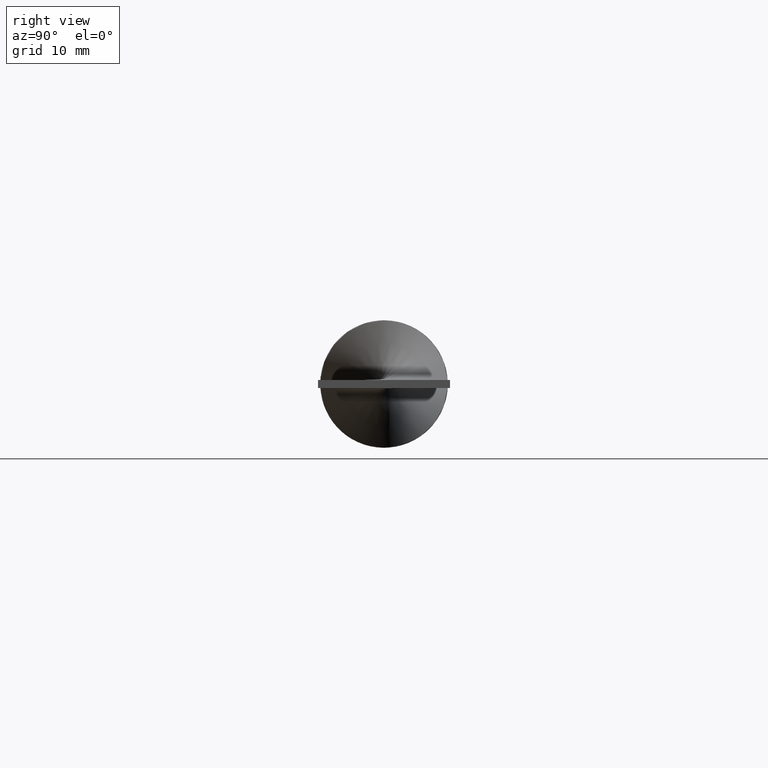
[diagram: clean part render]
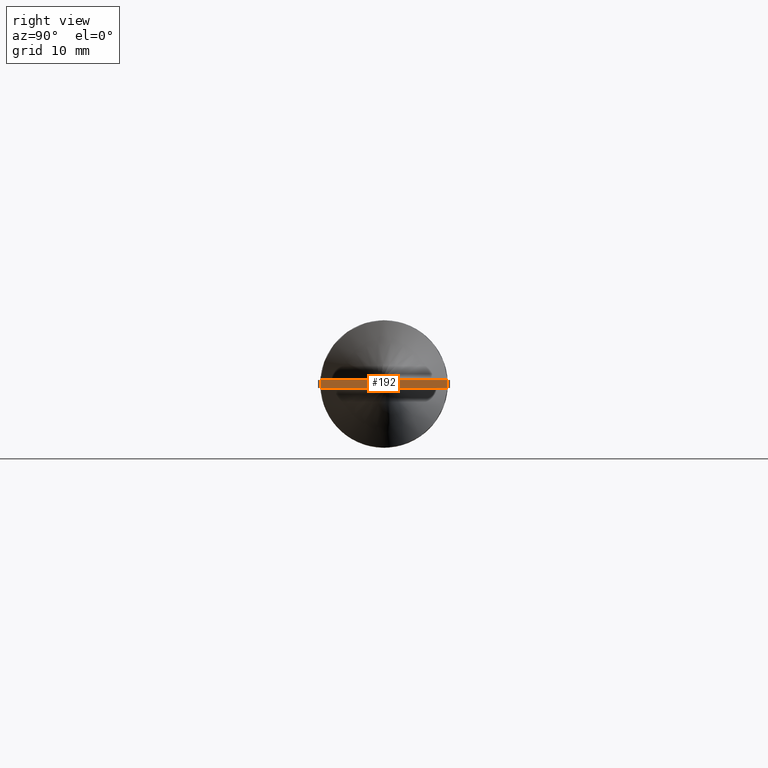
[diagram: same view with one face highlighted and labeled with its STEP entity id]
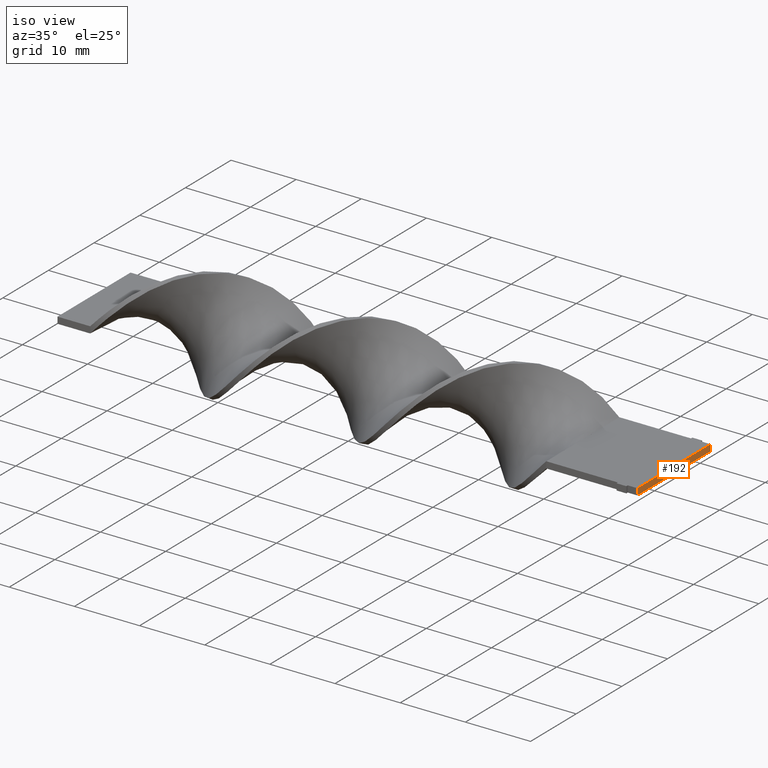
[diagram: same view with one face highlighted and labeled with its STEP entity id]
A machine part, right view. The second image highlights one B-rep face of the part: STEP entity #192.
A second angle (iso view) of the same face is appended — the face is thin or edge-on in the first view.
In plain terms, the highlighted planar face has unit normal (-1, -0, 0).
Its self-contained STEP definition (entity closure, byte-faithful):
#56 = CARTESIAN_POINT ( 'NONE',  ( -3.851859888774471706E-31, -8.000000000000000000, 0.5000000000000000000 ) ) ;
#118 = EDGE_LOOP ( 'NONE', ( #1364, #221, #902, #614 ) ) ;
#192 = ADVANCED_FACE ( 'NONE', ( #1034 ), #1176, .F. ) ;
#221 = ORIENTED_EDGE ( 'NONE', *, *, #1304, .F. ) ;
#253 = VERTEX_POINT ( 'NONE', #613 ) ;
#269 = EDGE_CURVE ( 'NONE', #253, #1388, #856, .T. ) ;
#270 = CARTESIAN_POINT ( 'NONE',  ( -3.851859888774471706E-31, -8.000000000000000000, 0.5000000000000000000 ) ) ;
#271 = AXIS2_PLACEMENT_3D ( 'NONE', #56, #1441, #468 ) ;
#325 = VECTOR ( 'NONE', #605, 1000.000000000000000 ) ;
#378 = CARTESIAN_POINT ( 'NONE',  ( -3.851859888774471706E-31, -8.000000000000000000, 0.5000000000000000000 ) ) ;
#401 = LINE ( 'NONE', #270, #706 ) ;
#468 = DIRECTION ( 'NONE',  ( 1.224646799147353207E-16, -1.000000000000000000, 0.000000000000000000 ) ) ;
#479 = CARTESIAN_POINT ( 'NONE',  ( -1.959434878635765526E-15, 8.000000000000000000, -0.5000000000000000000 ) ) ;
#514 = CARTESIAN_POINT ( 'NONE',  ( -3.851859888774471706E-31, -8.000000000000000000, 0.5000000000000000000 ) ) ;
#555 = VECTOR ( 'NONE', #1349, 1000.000000000000000 ) ;
#599 = LINE ( 'NONE', #378, #1212 ) ;
#605 = DIRECTION ( 'NONE',  ( -1.224646799147353207E-16, 1.000000000000000000, 0.000000000000000000 ) ) ;
#613 = CARTESIAN_POINT ( 'NONE',  ( -3.851859888774471706E-31, -8.000000000000000000, -0.5000000000000000000 ) ) ;
#614 = ORIENTED_EDGE ( 'NONE', *, *, #1540, .T. ) ;
#706 = VECTOR ( 'NONE', #1011, 1000.000000000000000 ) ;
#856 = LINE ( 'NONE', #1224, #325 ) ;
#902 = ORIENTED_EDGE ( 'NONE', *, *, #1289, .F. ) ;
#910 = CARTESIAN_POINT ( 'NONE',  ( -1.959434878635765526E-15, 8.000000000000000000, 0.5000000000000000000 ) ) ;
#1011 = DIRECTION ( 'NONE',  ( -0.000000000000000000, -0.000000000000000000, -1.000000000000000000 ) ) ;
#1034 = FACE_OUTER_BOUND ( 'NONE', #118, .T. ) ;
#1176 = PLANE ( 'NONE',  #271 ) ;
#1212 = VECTOR ( 'NONE', #1609, 1000.000000000000000 ) ;
#1224 = CARTESIAN_POINT ( 'NONE',  ( -3.851859888774471706E-31, -8.000000000000000000, -0.5000000000000000000 ) ) ;
#1247 = VERTEX_POINT ( 'NONE', #910 ) ;
#1289 = EDGE_CURVE ( 'NONE', #1534, #1247, #599, .T. ) ;
#1304 = EDGE_CURVE ( 'NONE', #1247, #1388, #1582, .T. ) ;
#1349 = DIRECTION ( 'NONE',  ( -0.000000000000000000, -0.000000000000000000, -1.000000000000000000 ) ) ;
#1357 = CARTESIAN_POINT ( 'NONE',  ( -1.959434878635765526E-15, 8.000000000000000000, 0.5000000000000000000 ) ) ;
#1364 = ORIENTED_EDGE ( 'NONE', *, *, #269, .T. ) ;
#1388 = VERTEX_POINT ( 'NONE', #479 ) ;
#1441 = DIRECTION ( 'NONE',  ( -1.000000000000000000, -1.224646799147353207E-16, 0.000000000000000000 ) ) ;
#1534 = VERTEX_POINT ( 'NONE', #514 ) ;
#1540 = EDGE_CURVE ( 'NONE', #1534, #253, #401, .T. ) ;
#1582 = LINE ( 'NONE', #1357, #555 ) ;
#1609 = DIRECTION ( 'NONE',  ( -1.224646799147353207E-16, 1.000000000000000000, 0.000000000000000000 ) ) ;